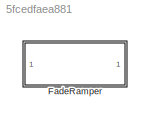
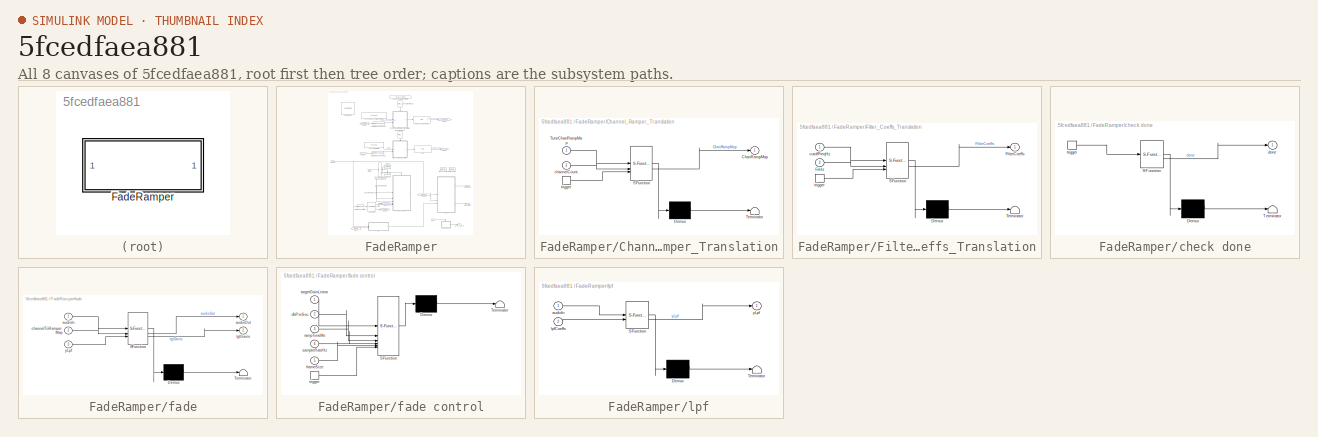
[diagram: thumbnail index - all 8 canvases of the model, root first then tree order]
MODEL slx_5fcedfaea881
KIND library
CONFIG AbsTol = auto
CONFIG EnableMultiTasking = off
CONFIG FixedStep = auto
CONFIG MaxStep = auto
CONFIG MinStep = auto
CONFIG RelTol = 1e-3
CONFIG SampleTimeConstraint = Unconstrained
CONFIG SolverName = VariableStepAuto
CONFIG StartTime = 0.0
CONFIG StopTime = 10.0
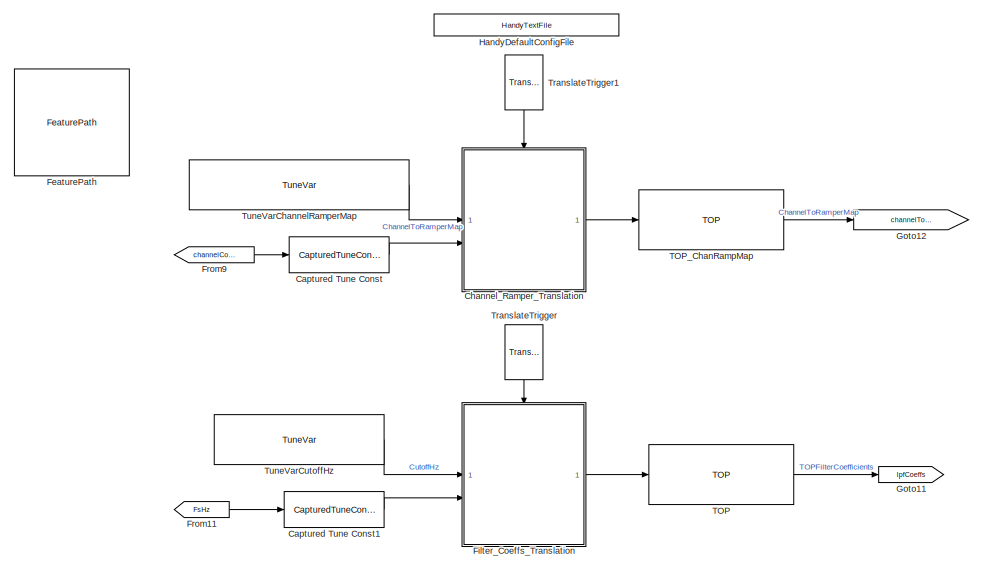
[diagram: FadeRamper - part 1/2, full width, top band]
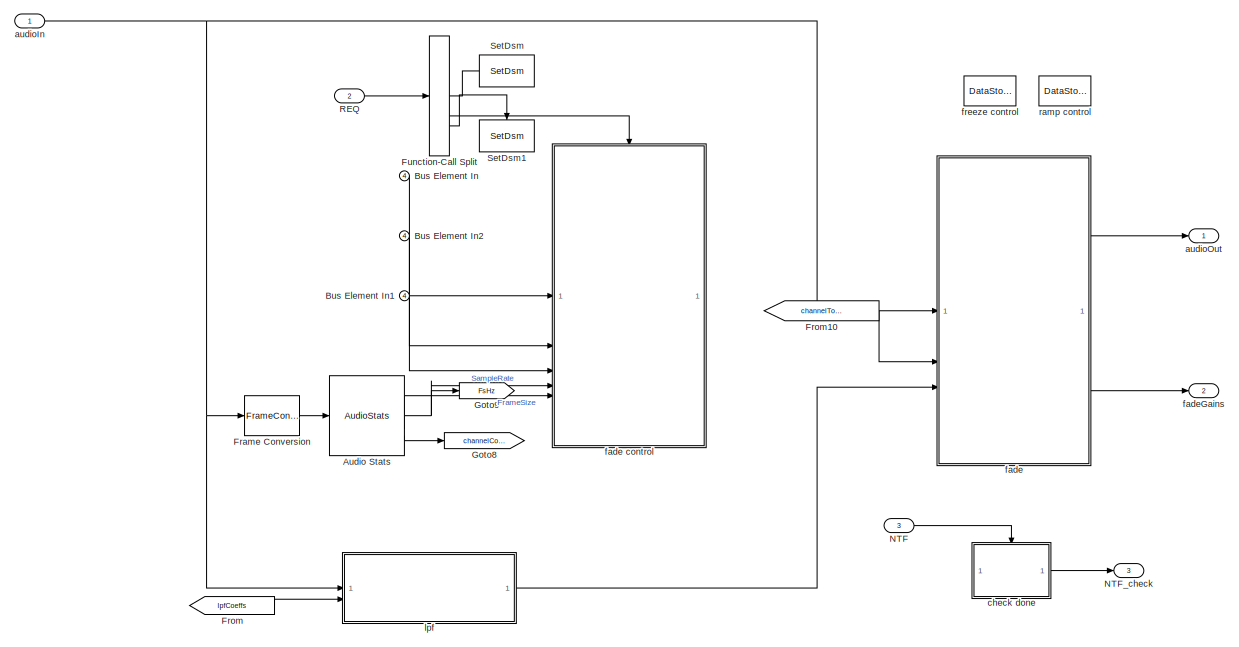
[diagram: FadeRamper - part 2/2, full width, bottom band]
BLOCK [SubSystem] FadeRamper
BLOCK [Reference] FadeRamper/Audio Stats  REF=AudioStats/AudioStats
  SourceBlock = AudioStats/AudioStats
  SourceProductName = Bose Talaria
  SourceType = Talaria Audio Statistics
BLOCK [Inport] FadeRamper/Bus Element In
  Port = 4
BLOCK [Inport] FadeRamper/Bus Element In1
  Port = 4
BLOCK [Inport] FadeRamper/Bus Element In2
  Port = 4
BLOCK [Reference] FadeRamper/Captured Tune Const  REF=TuneVar/CapturedTuneConst
  SourceBlock = TuneVar/CapturedTuneConst
  SourceProductName = Bose Talaria
  SourceType = Talaria Captured Constant
BLOCK [Reference] FadeRamper/Captured Tune Const1  REF=TuneVar/CapturedTuneConst
  SourceBlock = TuneVar/CapturedTuneConst
  SourceProductName = Bose Talaria
  SourceType = Talaria Captured Constant
BLOCK [SubSystem] FadeRamper/Channel_Ramper_Translation
  ErrorFcn = Stateflow.Translate.translate
  PermitHierarchicalResolution = ExplicitOnly
  SFBlockType = MATLAB Function
  TreatAsAtomicUnit = on
BLOCK [Demux] FadeRamper/Channel_Ramper_Translation/ Demux 
  Outputs = 1
BLOCK [S-Function] FadeRamper/Channel_Ramper_Translation/ SFunction 
  EnableBusSupport = off
  FunctionName = sf_sfun
  Parameters = MaskNumChannelGroups
  PortCounts = [3 2]
  SFcnIsStateOwnerBlock = off
  SFunctionDeploymentMode = off
  Tag = Stateflow S-Function 7
BLOCK [Terminator] FadeRamper/Channel_Ramper_Translation/ Terminator 
BLOCK [Outport] FadeRamper/Channel_Ramper_Translation/ChanRampMap
  VectorParamsAs1DForOutWhenUnconnected = off
BLOCK [Inport] FadeRamper/Channel_Ramper_Translation/TuneChanRampMap
BLOCK [Inport] FadeRamper/Channel_Ramper_Translation/channelCount
  Port = 2
BLOCK [TriggerPort] FadeRamper/Channel_Ramper_Translation/trigger
  ShowOutputPort = on
  StatesWhenEnabling = held
  TriggerType = function-call
  VariantControl = Variant
BLOCK [Reference] FadeRamper/FeaturePath  REF=FeaturePath/FeaturePath
  SourceBlock = FeaturePath/FeaturePath
  SourceProductName = Bose Talaria
  SourceType = Talaria Feature Path
BLOCK [SubSystem] FadeRamper/Filter_Coeffs_Translation
  ErrorFcn = Stateflow.Translate.translate
  PermitHierarchicalResolution = ExplicitOnly
  SFBlockType = MATLAB Function
  TreatAsAtomicUnit = on
BLOCK [Demux] FadeRamper/Filter_Coeffs_Translation/ Demux 
  Outputs = 1
BLOCK [S-Function] FadeRamper/Filter_Coeffs_Translation/ SFunction 
  EnableBusSupport = off
  FunctionName = sf_sfun
  PortCounts = [3 2]
  SFcnIsStateOwnerBlock = off
  SFunctionDeploymentMode = off
  Tag = Stateflow S-Function 4
BLOCK [Terminator] FadeRamper/Filter_Coeffs_Translation/ Terminator 
BLOCK [Outport] FadeRamper/Filter_Coeffs_Translation/FilterCoeffs
  VectorParamsAs1DForOutWhenUnconnected = off
BLOCK [Inport] FadeRamper/Filter_Coeffs_Translation/FsHz
  Port = 2
BLOCK [Inport] FadeRamper/Filter_Coeffs_Translation/cutoffFreqHz
BLOCK [TriggerPort] FadeRamper/Filter_Coeffs_Translation/trigger
  ShowOutputPort = on
  StatesWhenEnabling = held
  TriggerType = function-call
  VariantControl = Variant
BLOCK [FrameConversion] FadeRamper/Frame Conversion
  OutFrame = Sample-based
BLOCK [From] FadeRamper/From
  GotoTag = lpfCoeffs
BLOCK [From] FadeRamper/From10
  GotoTag = channelToRamperMap
BLOCK [From] FadeRamper/From11
  GotoTag = FsHz
BLOCK [From] FadeRamper/From9
  GotoTag = channelCount
BLOCK [FunctionCallSplit] FadeRamper/Function-Call Split
  IconShape = distinctive
  NumOutputPorts = 3
  OutputPortLayout = default
BLOCK [Goto] FadeRamper/Goto11
  GotoTag = lpfCoeffs
BLOCK [Goto] FadeRamper/Goto12
  GotoTag = channelToRamperMap
BLOCK [Goto] FadeRamper/Goto8
  GotoTag = channelCount
BLOCK [Goto] FadeRamper/Goto9
  GotoTag = FsHz
BLOCK [Reference] FadeRamper/HandyDefaultConfigFile  REF=HandyTextFile/HandyTextFile
  SourceBlock = HandyTextFile/HandyTextFile
  SourceProductName = Bose Talaria
  SourceType = Talaria Handy Text File
BLOCK [Inport] FadeRamper/NTF
  Port = 3
BLOCK [Outport] FadeRamper/NTF_check
  Port = 3
BLOCK [Inport] FadeRamper/REQ
  Port = 2
BLOCK [Reference] FadeRamper/SetDsm  REF=SetDsm/SetDsm
  SourceBlock = SetDsm/SetDsm
  SourceProductName = Bose Talaria
  SourceType = Talaria Set DSM
BLOCK [Reference] FadeRamper/SetDsm1  REF=SetDsm/SetDsm
  SourceBlock = SetDsm/SetDsm
  SourceProductName = Bose Talaria
  SourceType = Talaria Set DSM
BLOCK [Reference] FadeRamper/TOP  REF=TOP/TOP
  SourceBlock = TOP/TOP
  SourceProductName = Bose Talaria
  SourceType = Talaria Target Overlay Parameter
BLOCK [Reference] FadeRamper/TOP_ChanRampMap  REF=TOP/TOP
  SourceBlock = TOP/TOP
  SourceProductName = Bose Talaria
  SourceType = Talaria Target Overlay Parameter
BLOCK [Reference] FadeRamper/TranslateTrigger  REF=TuneVar/TranslateTrigger
  NameLocation = left
  SourceBlock = TuneVar/TranslateTrigger
  SourceProductName = Bose Talaria
  SourceType = Talaria Translate Trigger
BLOCK [Reference] FadeRamper/TranslateTrigger1  REF=TuneVar/TranslateTrigger
  NameLocation = left
  SourceBlock = TuneVar/TranslateTrigger
  SourceProductName = Bose Talaria
  SourceType = Talaria Translate Trigger
BLOCK [Reference] FadeRamper/TuneVarChannelRamperMap  REF=TuneVar/TuneVar
  SourceBlock = TuneVar/TuneVar
  SourceProductName = Bose Talaria
  SourceType = Talaria Tune Variable
BLOCK [Reference] FadeRamper/TuneVarCutoffHz  REF=TuneVar/TuneVar
  SourceBlock = TuneVar/TuneVar
  SourceProductName = Bose Talaria
  SourceType = Talaria Tune Variable
BLOCK [Inport] FadeRamper/audioIn
BLOCK [Outport] FadeRamper/audioOut
  VectorParamsAs1DForOutWhenUnconnected = off
BLOCK [SubSystem] FadeRamper/check done
  ErrorFcn = Stateflow.Translate.translate
  PermitHierarchicalResolution = ExplicitOnly
  SFBlockType = MATLAB Function
  TreatAsAtomicUnit = on
BLOCK [Demux] FadeRamper/check done/ Demux 
  Outputs = 1
BLOCK [S-Function] FadeRamper/check done/ SFunction 
  EnableBusSupport = off
  FunctionName = sf_sfun
  PortCounts = [1 2]
  SFcnIsStateOwnerBlock = off
  SFunctionDeploymentMode = off
  Tag = Stateflow S-Function 2
BLOCK [Terminator] FadeRamper/check done/ Terminator 
BLOCK [Outport] FadeRamper/check done/done
  VectorParamsAs1DForOutWhenUnconnected = off
BLOCK [TriggerPort] FadeRamper/check done/trigger
  ShowOutputPort = on
  StatesWhenEnabling = held
  TriggerType = function-call
  VariantControl = Variant
BLOCK [SubSystem] FadeRamper/fade
  ErrorFcn = Stateflow.Translate.translate
  PermitHierarchicalResolution = ExplicitOnly
  RTWSystemCode = Reusable function
  SFBlockType = MATLAB Function
  TreatAsAtomicUnit = on
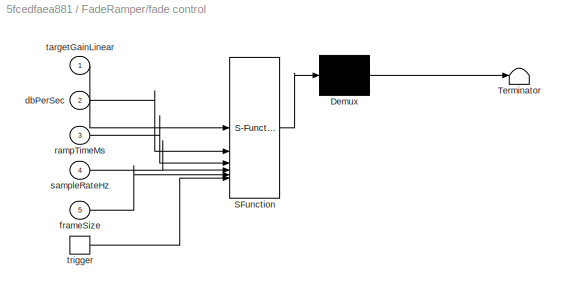
BLOCK [SubSystem] FadeRamper/fade control
  ErrorFcn = Stateflow.Translate.translate
  PermitHierarchicalResolution = ExplicitOnly
  RTWSystemCode = Reusable function
  SFBlockType = MATLAB Function
  TreatAsAtomicUnit = on
BLOCK [Demux] FadeRamper/fade control/ Demux 
  Outputs = 1
BLOCK [S-Function] FadeRamper/fade control/ SFunction 
  EnableBusSupport = off
  FunctionName = sf_sfun
  PortCounts = [6 1]
  SFcnIsStateOwnerBlock = off
  SFunctionDeploymentMode = off
  Tag = Stateflow S-Function 6
BLOCK [Terminator] FadeRamper/fade control/ Terminator 
BLOCK [Inport] FadeRamper/fade control/dbPerSec
  Port = 2
BLOCK [Inport] FadeRamper/fade control/frameSize
  Port = 5
BLOCK [Inport] FadeRamper/fade control/rampTimeMs
  Port = 3
BLOCK [Inport] FadeRamper/fade control/sampleRateHz
  Port = 4
BLOCK [Inport] FadeRamper/fade control/targetGainLinear
BLOCK [TriggerPort] FadeRamper/fade control/trigger
  ShowOutputPort = on
  StatesWhenEnabling = held
  TriggerType = function-call
  VariantControl = Variant
BLOCK [Demux] FadeRamper/fade/ Demux 
  Outputs = 1
BLOCK [S-Function] FadeRamper/fade/ SFunction 
  EnableBusSupport = off
  FunctionName = sf_sfun
  PortCounts = [3 3]
  SFcnIsStateOwnerBlock = off
  SFunctionDeploymentMode = off
  Tag = Stateflow S-Function 5
BLOCK [Terminator] FadeRamper/fade/ Terminator 
BLOCK [Inport] FadeRamper/fade/audioIn
BLOCK [Outport] FadeRamper/fade/audioOut
  VectorParamsAs1DForOutWhenUnconnected = off
BLOCK [Inport] FadeRamper/fade/channelToRamperMap
  Port = 2
BLOCK [Outport] FadeRamper/fade/tgtGains
  Port = 2
BLOCK [Inport] FadeRamper/fade/yLpf
  Port = 3
BLOCK [Outport] FadeRamper/fadeGains
  Port = 2
BLOCK [DataStoreMemory] FadeRamper/freeze control
  DataStoreName = Freeze
  OutDataTypeStr = uint32
  ShowAdditionalParam = off
  SignalType = real
BLOCK [SubSystem] FadeRamper/lpf
  ErrorFcn = Stateflow.Translate.translate
  PermitHierarchicalResolution = ExplicitOnly
  SFBlockType = MATLAB Function
  TreatAsAtomicUnit = on
BLOCK [Demux] FadeRamper/lpf/ Demux 
  Outputs = 1
BLOCK [S-Function] FadeRamper/lpf/ SFunction 
  EnableBusSupport = off
  FunctionName = sf_sfun
  PortCounts = [2 2]
  SFcnIsStateOwnerBlock = off
  SFunctionDeploymentMode = off
  Tag = Stateflow S-Function 9
BLOCK [Terminator] FadeRamper/lpf/ Terminator 
BLOCK [Inport] FadeRamper/lpf/audioIn
BLOCK [Inport] FadeRamper/lpf/lpfCoeffs
  Port = 2
BLOCK [Outport] FadeRamper/lpf/yLpf
  VectorParamsAs1DForOutWhenUnconnected = off
BLOCK [DataStoreMemory] FadeRamper/ramp control
  DataStoreName = Rampers
  InitialValue = Config.DlgRamperInit
  OutDataTypeStr = Bus: rgain_bus
  ShowAdditionalParam = off
  SignalType = real
CHART FadeRamper/lpf states=1 transitions=1
  STATE_LABEL 'eML_blk_kernel()'
  STATE_LABEL "SCRIPT:\nfunction yLpf = lowPassFilter(audioIn, lpfCoeffs)\n\n% Applies the filter coefficients to the input audio\n% Inputs: \n%  audioIn: Input audio\n%  lpfCoeffs: Filter coefficients\n\n[frameSize, channel_count] = size(audioIn);\n\npersistent filterStates;\nif (isempty(filterStates))\n    filterStates = zeros(1,channel_count,'single');\nend\n\nyLpf = coder.nullcopy(audioIn);\n\n% Get filter coefficients\nbCoef...<+225ch>"
CHART FadeRamper/check done states=1 transitions=1
  STATE_LABEL 'eML_blk_kernel()'
  STATE_LABEL "SCRIPT:\nfunction done  = fcn\n%#codegen\n\nglobal Rampers;\n\n% Fading is done if both the 'Front' and the 'Rear' groups of channels \n% have ramped.\ndone = Rampers(1).frameCount == 0 && Rampers(2).frameCount == 0;\n"
CHART FadeRamper/Filter_Coeffs_Translation states=1 transitions=1
  STATE_LABEL 'eML_blk_kernel()'
  STATE_LABEL 'SCRIPT:\nfunction FilterCoeffs  = fcn(cutoffFreqHz, FsHz)\n\n% Generate the low pass filter coefficients which will then be applied to\n% the audio input\n% Inputs:\n%  cutoffFreqHz: Cut off frequency in Hz for LPF\n%  FsHz: Sampling frequency in Hz\n\nomega = 2 * pi * cutoffFreqHz.Value / FsHz;\n\nA = 1 - sin(omega) / cos(omega);\nB0 = (1 - A) / 2;\nB1 = B0;\n\nFilterCoeffs = single([B0 B1 A]);\n'
CHART FadeRamper/fade states=1 transitions=1
  STATE_LABEL 'eML_blk_kernel()'
  STATE_LABEL "SCRIPT:\n function [audioOut,tgtGains]  = fadeProcess( audioIn, channelToRamperMap, yLpf) % inputs\n\n% Applies the 'Front' and 'Rear' gains to the respective channels\n% Inputs:\n%  audioIn: Input audio\n%  channelToRamperMap: Input channels mapped to their corresponding group.\n%    'Front' channels are mapped to rampers 1 and 3, and 'Rear' to rampers 2\n%    and 4.\n%  yLpf: Low frequency content of the...<+2531ch>"
CHART FadeRamper/fade control states=1 transitions=1
  STATE_LABEL 'eML_blk_kernel()'
  STATE_LABEL 'SCRIPT:\nfunction control(...\n    targetGainLinear, dbPerSec, rampTimeMs, sampleRateHz, frameSize) %inputs \n\n% High level control summary:\n% The fade effect is achieved by boosting the gain of one group of\n% speakers and cutting the gain of the opposite side. The corresponding\n% gain (Rampers 1,2) is applied to the non-bass content of the audio, and \n% the bass content is simply added to it. For ex...<+3608ch>'
CHART FadeRamper/Channel_Ramper_Translation states=1 transitions=1
  STATE_LABEL 'eML_blk_kernel()'
  STATE_LABEL "SCRIPT:\nfunction ChanRampMap  = fcn(TuneChanRampMap, channelCount,... % inputs\n    MaskNumChannelGroups) % parameters\n\n% Verifies if each channel is assigned to either the 'Front'(1) or 'Rear'(2)\n% groups. \n\nargName = 'Fade';\n\n% Ensure each channel is present in the map\ninputMapWidth = numel(TuneChanRampMap.Value);\nif (inputMapWidth ~= channelCount)\n   error(['Error in %s : Channel-to-ramper map w...<+949ch>"
CHART  states=0 transitions=0
CHART  states=0 transitions=0
CHART  states=0 transitions=0
CHART  states=0 transitions=0
CHART  states=0 transitions=0
CHART  states=0 transitions=0
